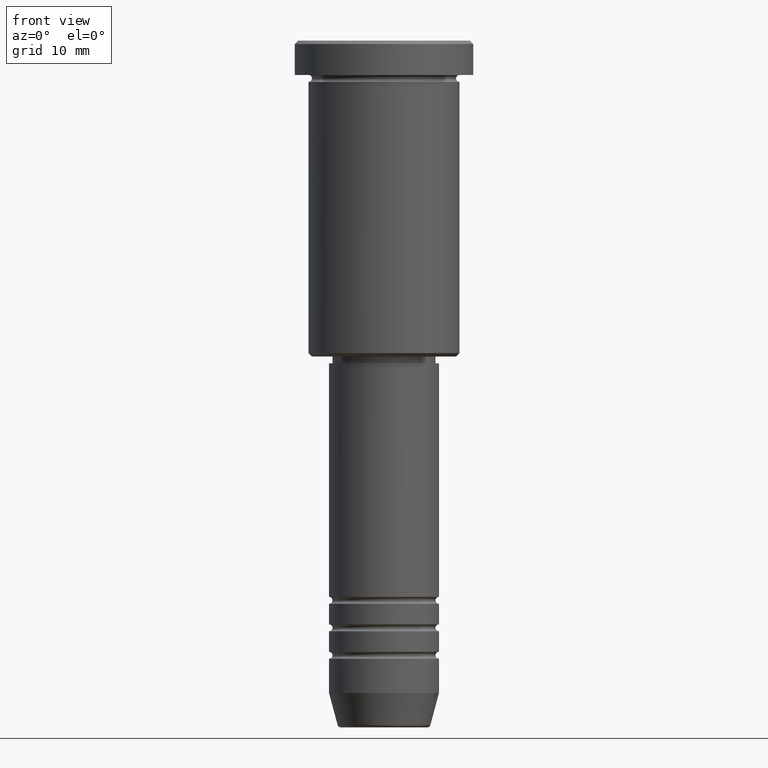
[diagram: clean part render]
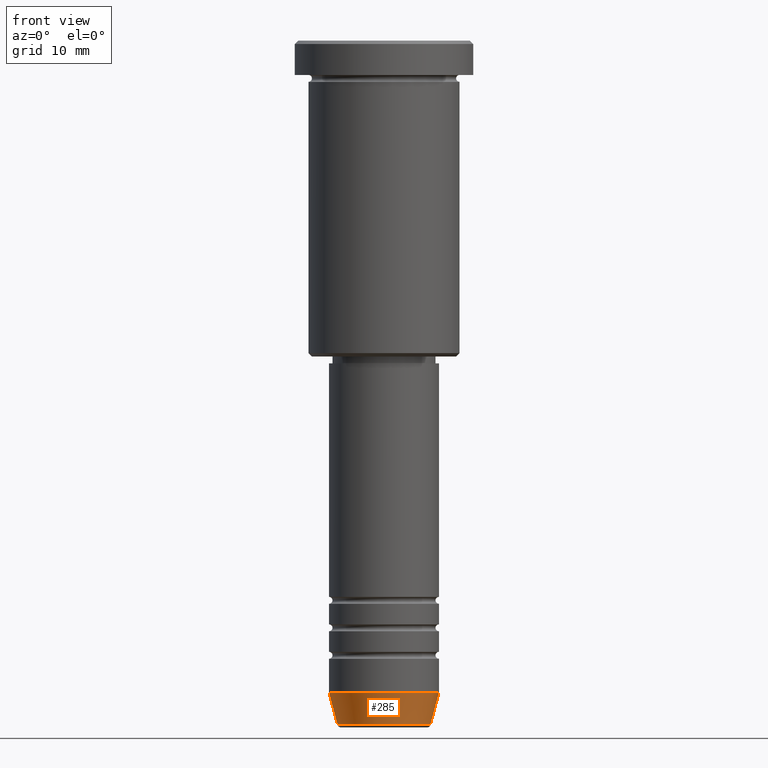
[diagram: same view with one face highlighted and labeled with its STEP entity id]
A machine part, front view. The second image highlights one B-rep face of the part: STEP entity #285.
In plain terms, the highlighted conical surface has half-angle 15 deg.
Its self-contained STEP definition (entity closure, byte-faithful):
#42 = VERTEX_POINT ( 'NONE', #952 ) ;
#50 = CARTESIAN_POINT ( 'NONE',  ( 0.000000000000000000, 0.000000000000000000, -95.00000000000000000 ) ) ;
#64 = AXIS2_PLACEMENT_3D ( 'NONE', #816, #272, #633 ) ;
#101 = LINE ( 'NONE', #270, #338 ) ;
#144 = VERTEX_POINT ( 'NONE', #1051 ) ;
#236 = DIRECTION ( 'NONE',  ( 1.000000000000000000, 0.000000000000000000, 0.000000000000000000 ) ) ;
#248 = VERTEX_POINT ( 'NONE', #1060 ) ;
#270 = CARTESIAN_POINT ( 'NONE',  ( 8.000000000000000000, 0.000000000000000000, -95.00000000000000000 ) ) ;
#272 = DIRECTION ( 'NONE',  ( -0.000000000000000000, -0.000000000000000000, 1.000000000000000000 ) ) ;
#285 = ADVANCED_FACE ( 'NONE', ( #409 ), #426, .T. ) ;
#291 = DIRECTION ( 'NONE',  ( -0.000000000000000000, -0.000000000000000000, 1.000000000000000000 ) ) ;
#338 = VECTOR ( 'NONE', #1093, 1000.000000000000114 ) ;
#382 = CIRCLE ( 'NONE', #1046, 6.759553456999436882 ) ;
#392 = EDGE_CURVE ( 'NONE', #144, #400, #581, .T. ) ;
#400 = VERTEX_POINT ( 'NONE', #473 ) ;
#409 = FACE_OUTER_BOUND ( 'NONE', #532, .T. ) ;
#426 = CONICAL_SURFACE ( 'NONE', #755, 8.000000000000000000, 0.2617993877991502405 ) ;
#472 = ORIENTED_EDGE ( 'NONE', *, *, #1094, .T. ) ;
#473 = CARTESIAN_POINT ( 'NONE',  ( 8.000000000000000000, 0.000000000000000000, -95.00000000000000000 ) ) ;
#532 = EDGE_LOOP ( 'NONE', ( #859, #647, #472, #543 ) ) ;
#543 = ORIENTED_EDGE ( 'NONE', *, *, #392, .F. ) ;
#581 = CIRCLE ( 'NONE', #64, 8.000000000000000000 ) ;
#633 = DIRECTION ( 'NONE',  ( 1.000000000000000000, 0.000000000000000000, 0.000000000000000000 ) ) ;
#647 = ORIENTED_EDGE ( 'NONE', *, *, #875, .T. ) ;
#655 = DIRECTION ( 'NONE',  ( 1.000000000000000000, 0.000000000000000000, 0.000000000000000000 ) ) ;
#754 = LINE ( 'NONE', #1116, #903 ) ;
#755 = AXIS2_PLACEMENT_3D ( 'NONE', #50, #1151, #236 ) ;
#816 = CARTESIAN_POINT ( 'NONE',  ( 0.000000000000000000, 0.000000000000000000, -95.00000000000000000 ) ) ;
#842 = DIRECTION ( 'NONE',  ( -0.2588190451025214611, 3.169619151431774186E-17, 0.9659258262890679791 ) ) ;
#853 = CARTESIAN_POINT ( 'NONE',  ( 0.000000000000000000, 0.000000000000000000, -99.62940952255127058 ) ) ;
#859 = ORIENTED_EDGE ( 'NONE', *, *, #889, .F. ) ;
#875 = EDGE_CURVE ( 'NONE', #42, #248, #382, .T. ) ;
#889 = EDGE_CURVE ( 'NONE', #42, #144, #754, .T. ) ;
#903 = VECTOR ( 'NONE', #842, 1000.000000000000114 ) ;
#952 = CARTESIAN_POINT ( 'NONE',  ( -6.759553456999437770, 9.037619948979306213E-16, -99.62940952255127058 ) ) ;
#1046 = AXIS2_PLACEMENT_3D ( 'NONE', #853, #291, #655 ) ;
#1051 = CARTESIAN_POINT ( 'NONE',  ( -8.000000000000000000, 9.797174393178825657E-16, -95.00000000000000000 ) ) ;
#1060 = CARTESIAN_POINT ( 'NONE',  ( 6.759553456999436882, 0.000000000000000000, -99.62940952255127058 ) ) ;
#1093 = DIRECTION ( 'NONE',  ( 0.2588190451025214611, 0.000000000000000000, 0.9659258262890679791 ) ) ;
#1094 = EDGE_CURVE ( 'NONE', #248, #400, #101, .T. ) ;
#1116 = CARTESIAN_POINT ( 'NONE',  ( -8.000000000000000000, 9.797174393178825657E-16, -95.00000000000000000 ) ) ;
#1151 = DIRECTION ( 'NONE',  ( -0.000000000000000000, -0.000000000000000000, 1.000000000000000000 ) ) ;